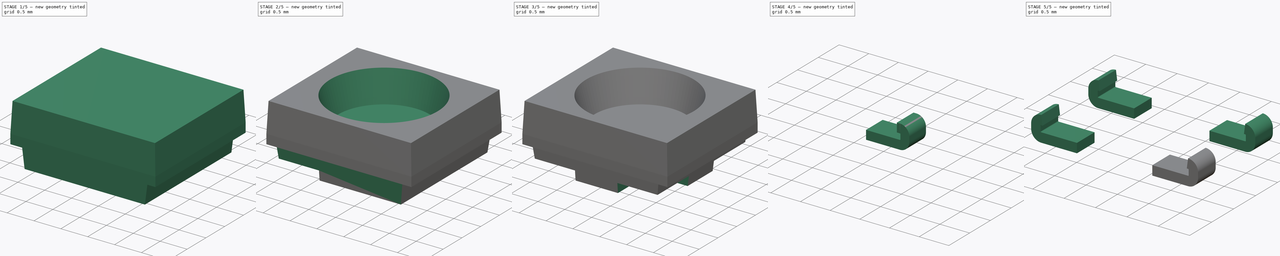
[diagram: build sequence overview — one tinted view per stage of 5, left to right]
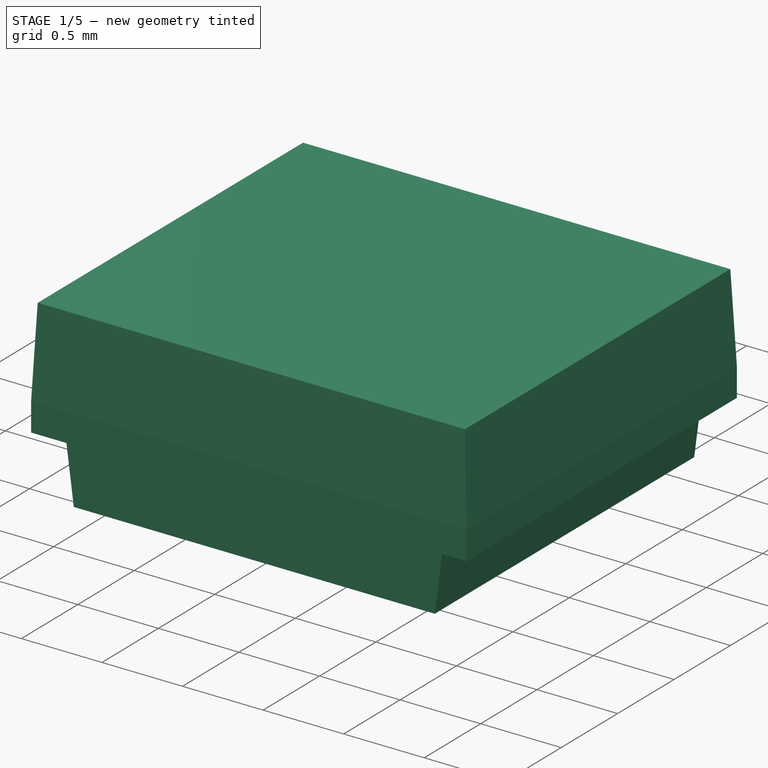
[diagram: stage 1 of 5 — iso view after this stage's code; geometry added in this stage tinted green]
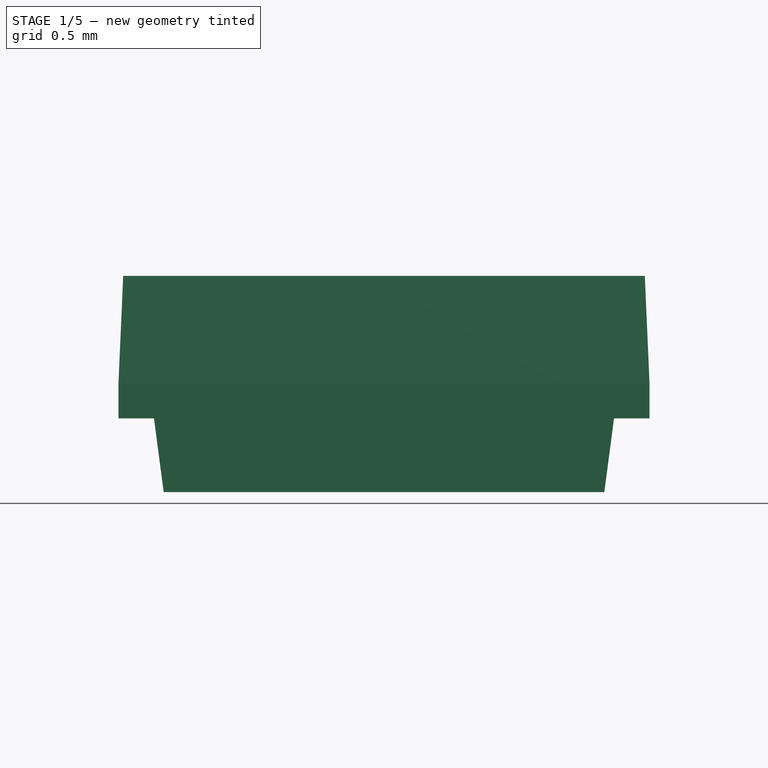
[diagram: stage 1 of 5 — front view after this stage's code; geometry added in this stage tinted green]
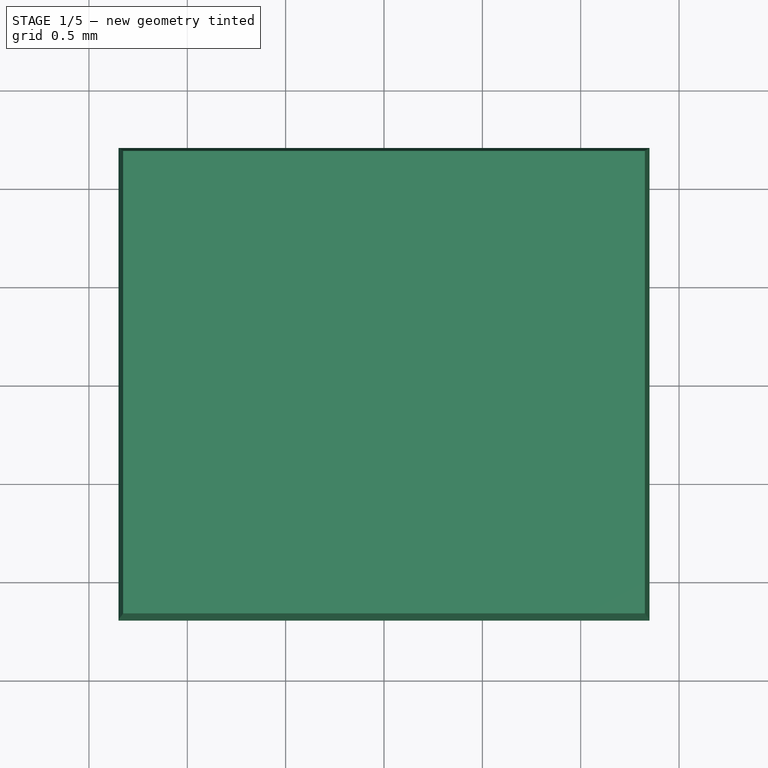
[diagram: stage 1 of 5 — top view after this stage's code; geometry added in this stage tinted green]
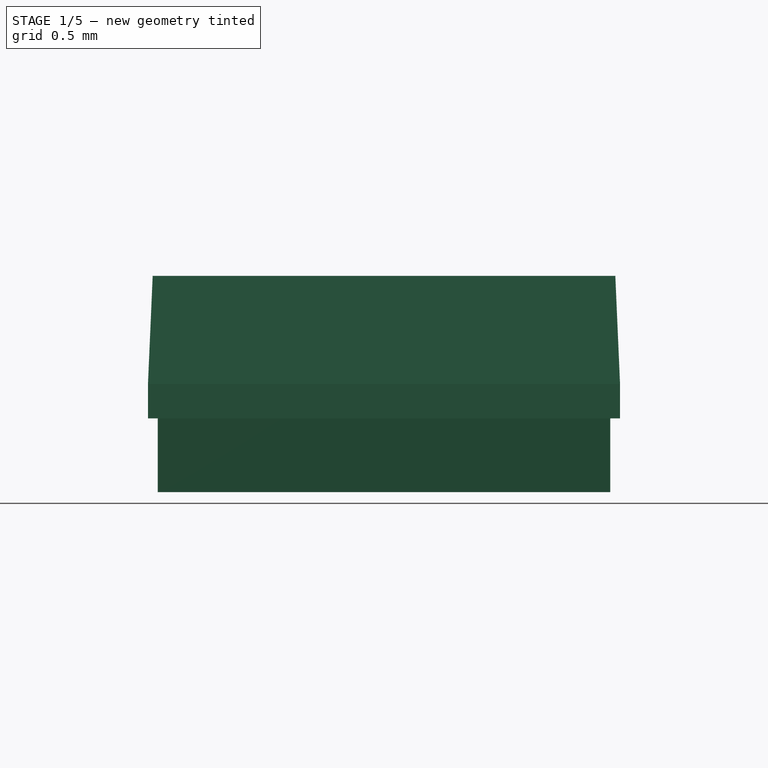
[diagram: stage 1 of 5 — right view after this stage's code; geometry added in this stage tinted green]
FCSTD DOCUMENT  (FreeCAD 1.0R39319 (Git))
Label: WS2812C-2427
License: All rights reserved
LicenseURL: https://en.wikipedia.org/wiki/All_rights_reserved
objects: Sketcher::SketchObject×8, PartDesign::Pocket×5, PartDesign::Pad×4, PartDesign::Draft×4, Image::ImagePlane×3, PartDesign::Mirrored×2, PartDesign::Body×2, PartDesign::FeaturePython×2, App::Part×2, PartDesign::MultiTransform×1, PartDesign::SubShapeBinder×1, App::DocumentObjectGroup×1, Part::FeaturePython×1, Part::Mirroring×1, Part::MultiFuse×1
note: 71 computed .brp shape members not serialized (recipe doc carries the construction recipe); baked Part::Feature solids carry a one-line shape summary decoded from their .brp

FEATURE [Sketcher::SketchObject] Sketch
  ArcFitTolerance = 1e-06
  AttachmentOffset = pos=(0,0,0.55) rot=(0,0,1;0rad)
  AttachmentSupport = -> [XY_Plane001]
  FullyConstrained = true
  MakeInternals = false
  MapMode = 5
  Placement = pos=(0,0,0.55) rot=(0,0,1;0rad)
  sketch-geometry (5):
    g0: LineSegment StartX=-1.35 StartY=-1.2 StartZ=0 EndX=1.35 EndY=-1.2 EndZ=0
    g1: LineSegment StartX=1.35 StartY=-1.2 StartZ=0 EndX=1.35 EndY=1.2 EndZ=0
    g2: LineSegment StartX=1.35 StartY=1.2 StartZ=0 EndX=-1.35 EndY=1.2 EndZ=0
    g3: LineSegment StartX=-1.35 StartY=1.2 StartZ=0 EndX=-1.35 EndY=-1.2 EndZ=0
    g4: GeomPoint [constr] X=0 Y=0 Z=0
  constraints (12):
    c: Coincident(g0,g1)
    c: Coincident(g1,g2)
    c: Coincident(g2,g3)
    c: Coincident(g3,g0)
    c: Horizontal(g0)
    c: Horizontal(g2)
    c: Vertical(g1)
    c: Vertical(g3)
    c: Symmetric(g2,g0,g4)
    c: Distance(g1,g3) = 2.7
    c: Distance(g0,g2) = 2.4
    c: Coincident(g4,g-1)
FEATURE [PartDesign::Pad] Pad  label="Pad-Top"
  Direction = (0,0,1)
  Length = 0.55
  Length2 = 10
  Profile = -> Sketch
  ReferenceAxis = -> Sketch [N_Axis]
  Refine = true
  Suppressed = false
  TaperAngle = -2.5
  Type = 0
FEATURE [PartDesign::Pad] Pad001  label="Pad-Middle"
  BaseFeature = -> Pad
  Direction = (0,0,-1)
  Length = 0.175
  Length2 = 10
  Profile = -> Pad [Face5]
  Refine = true
  Suppressed = false
  Type = 0
FEATURE [Sketcher::SketchObject] Sketch001
  ArcFitTolerance = 1e-06
  AttachmentSupport = -> [Pad001]
  ExternalGeometry = -> [Pad001]
  FullyConstrained = true
  MakeInternals = false
  MapMode = 5
  Placement = pos=(0,0,0.375) rot=(1,0,0;3.14159rad)
  sketch-geometry (5):
    g0: LineSegment StartX=-1.12 StartY=-1.15 StartZ=0 EndX=1.12 EndY=-1.15 EndZ=0
    g1: LineSegment StartX=1.12 StartY=-1.15 StartZ=0 EndX=1.12 EndY=1.15 EndZ=0
    g2: LineSegment StartX=1.12 StartY=1.15 StartZ=0 EndX=-1.12 EndY=1.15 EndZ=0
    g3: LineSegment StartX=-1.12 StartY=1.15 StartZ=0 EndX=-1.12 EndY=-1.15 EndZ=0
    g4: GeomPoint [constr] X=0 Y=0 Z=0
  constraints (12):
    c: Coincident(g0,g1)
    c: Coincident(g1,g2)
    c: Coincident(g2,g3)
    c: Coincident(g3,g0)
    c: Horizontal(g0)
    c: Horizontal(g2)
    c: Vertical(g1)
    c: Vertical(g3)
    c: Symmetric(g2,g0,g4)
    c: Coincident(g4,g-1)
    c: DistanceX(g1,g-3) = 0.23
    c: DistanceY(g1,g-3) = 0.05
FEATURE [Image::ImagePlane] _026_03_03_113828_hyprshot  label="Bottom"
  Placement = pos=(-0.315,0.225,0) rot=(1,0,0;3.14159rad)
  XSize = 5.53369
  YSize = 4.5861
FEATURE [PartDesign::Pad] Pad002  label="Pad-Bottom"
  BaseFeature = -> Pad001
  Direction = (0,0,-1)
  Length = 0.375
  Length2 = 10
  Profile = -> Sketch001
  ReferenceAxis = -> Sketch001 [N_Axis]
  Refine = true
  Suppressed = false
  Type = 0
FEATURE [PartDesign::Draft] Draft  label="Draft-Bottom"
  Angle = 7.5
  Base = -> Pad002 [Face12,Face14]
  BaseFeature = -> Pad002
  NeutralPlane = -> Pad002 [Face15]
  Refine = true
  Reversed = true
  SupportTransform = false
  Suppressed = false
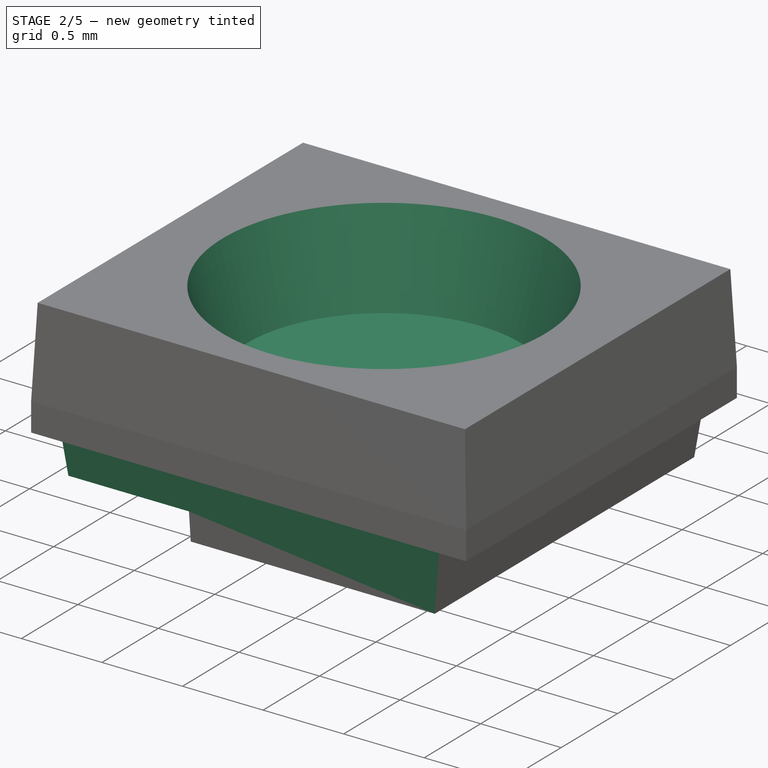
[diagram: stage 2 of 5 — iso view after this stage's code; geometry added in this stage tinted green]
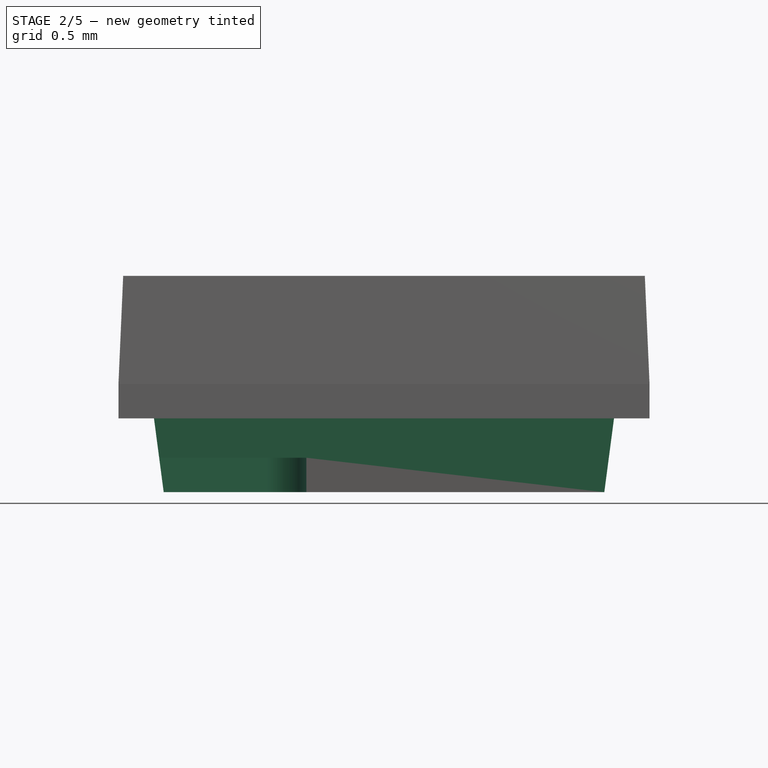
[diagram: stage 2 of 5 — front view after this stage's code; geometry added in this stage tinted green]
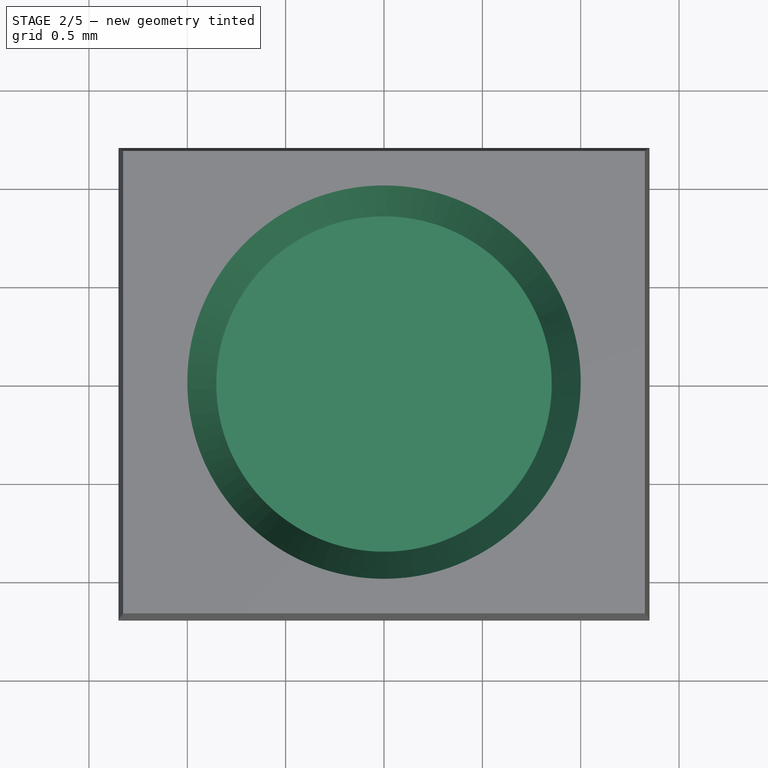
[diagram: stage 2 of 5 — top view after this stage's code; geometry added in this stage tinted green]
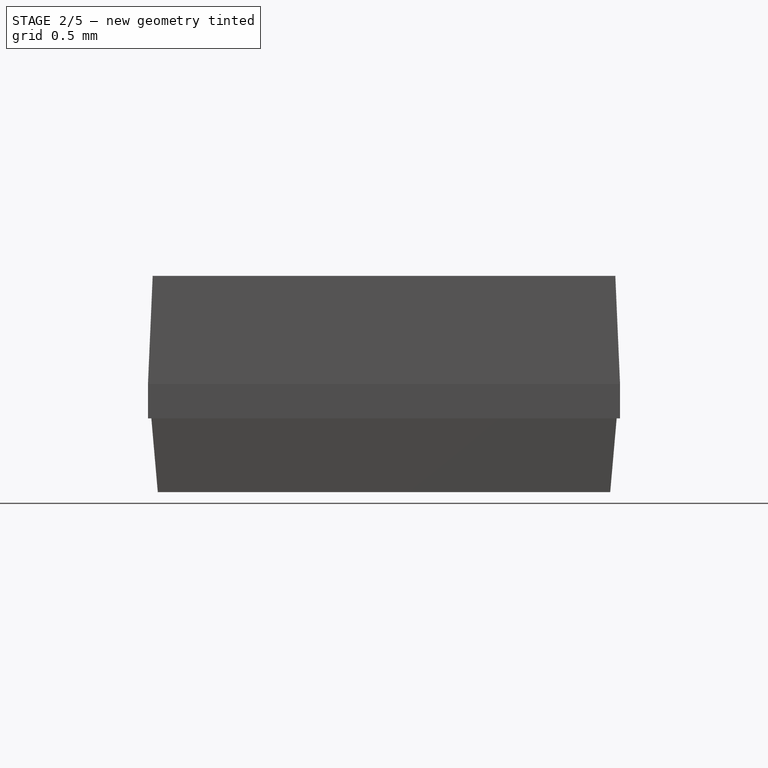
[diagram: stage 2 of 5 — right view after this stage's code; geometry added in this stage tinted green]
FEATURE [PartDesign::Draft] Draft001  label="Draft-Bottom001"
  Angle = 5
  Base = -> Draft [Face11,Face13]
  BaseFeature = -> Draft
  NeutralPlane = -> Draft [Face15]
  Refine = true
  Reversed = true
  SupportTransform = false
  Suppressed = false
FEATURE [Image::ImagePlane] _026_03_03_120234_hyprshot  label="Side"
  Placement = pos=(2,-0.055,0.285) rot=(0,1,0;1.5708rad)
  XSize = 4.11704
  YSize = 4.19491
FEATURE [Sketcher::SketchObject] Sketch002
  ArcFitTolerance = 1e-06
  AttachmentSupport = -> [Draft001]
  FullyConstrained = true
  MakeInternals = false
  MapMode = 5
  Placement = pos=(0,0,1.1) rot=(0,0,1;0rad)
  sketch-geometry (1):
    g0: Circle CenterX=0 CenterY=0 CenterZ=0 NormalX=0 NormalY=0 NormalZ=1 AngleXU=0 Radius=1
  constraints (2):
    c: Diameter(g0) = 2
    c: Coincident(g0,g-1)
FEATURE [PartDesign::Pocket] Pocket  label="Pocket-TopHole"
  BaseFeature = -> Draft001
  Direction = (0,0,-1)
  Length = 0.55
  Length2 = 5
  Profile = -> Sketch002
  ReferenceAxis = -> Sketch002 [N_Axis]
  Refine = true
  Suppressed = false
  Type = 0
FEATURE [PartDesign::Draft] Draft002  label="Draft-TopHole"
  Angle = 15
  Base = -> Pocket [Face10]
  BaseFeature = -> Pocket
  NeutralPlane = -> Pocket [Face4]
  Refine = true
  Reversed = true
  SupportTransform = false
  Suppressed = false
FEATURE [Sketcher::SketchObject] Sketch003
  ArcFitTolerance = 1e-06
  AttachmentSupport = -> [Draft002]
  ExternalGeometry = -> [Draft002]
  FullyConstrained = true
  MakeInternals = false
  MapMode = 5
  Placement = pos=(0,0,0) rot=(1,0,0;3.14159rad)
  sketch-geometry (6):
    g0: LineSegment StartX=-1.16937 StartY=1.18281 StartZ=0 EndX=-1.16937 EndY=0.332808 EndZ=0
    g1: LineSegment StartX=-1.16937 StartY=0.332808 StartZ=0 EndX=-0.59437 EndY=0.332808 EndZ=0
    g2: LineSegment StartX=-0.39437 StartY=0.532808 StartZ=0 EndX=-0.39437 EndY=1.18281 EndZ=0
    g3: LineSegment StartX=-0.39437 StartY=1.18281 StartZ=0 EndX=-1.16937 EndY=1.18281 EndZ=0
    g4: ArcOfCircle CenterX=-0.59437 CenterY=0.532808 CenterZ=0 NormalX=0 NormalY=0 NormalZ=1 AngleXU=0 Radius=0.2 StartAngle=4.71239 EndAngle=6.28319
    g5: GeomPoint [constr] X=-0.39437 Y=0.332808 Z=0
  constraints (15):
    c: Coincident(g0,g1)
    c: Coincident(g2,g3)
    c: Coincident(g3,g0)
    c: Vertical(g0)
    c: Vertical(g2)
    c: Horizontal(g1)
    c: Horizontal(g3)
    c: Coincident(g0,g-3)
    c: PointOnObject(g5,g1)
    c: PointOnObject(g5,g2)
    c: Tangent(g1,g4) = -1.5708
    c: Tangent(g2,g4) = -1.5708
    c: DistanceX(g3,g3) = 0.775
    c: DistanceY(g0,g0) = 0.85
    c: Radius(g4) = 0.2
FEATURE [PartDesign::Pocket] Pocket001  label="Pocket-BottomCorner"
  BaseFeature = -> Draft002
  Direction = (0,0,1)
  Length = 0.175
  Length2 = 5
  Profile = -> Sketch003
  ReferenceAxis = -> Sketch003 [N_Axis]
  Refine = true
  Suppressed = false
  Type = 0
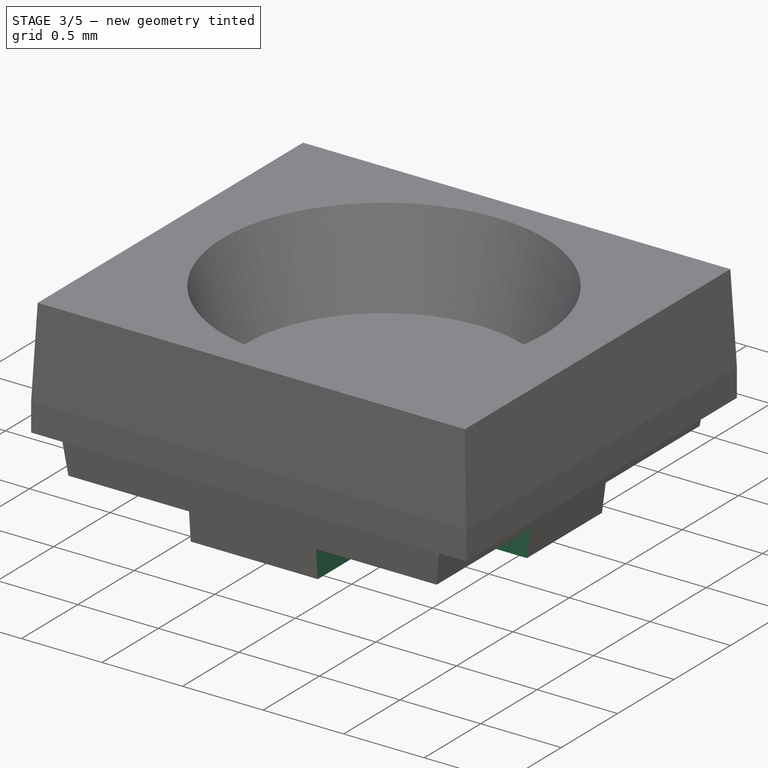
[diagram: stage 3 of 5 — iso view after this stage's code; geometry added in this stage tinted green]
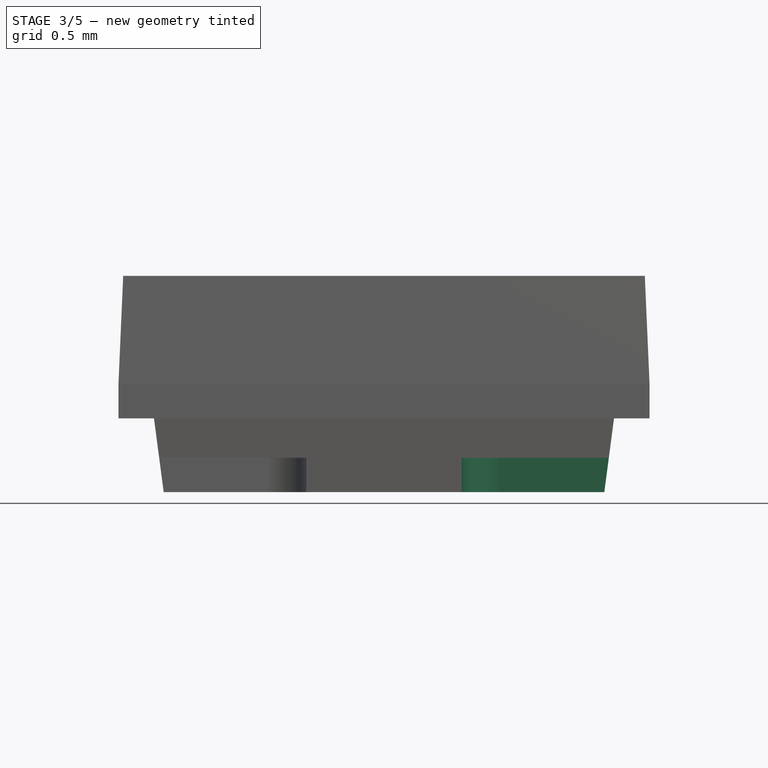
[diagram: stage 3 of 5 — front view after this stage's code; geometry added in this stage tinted green]
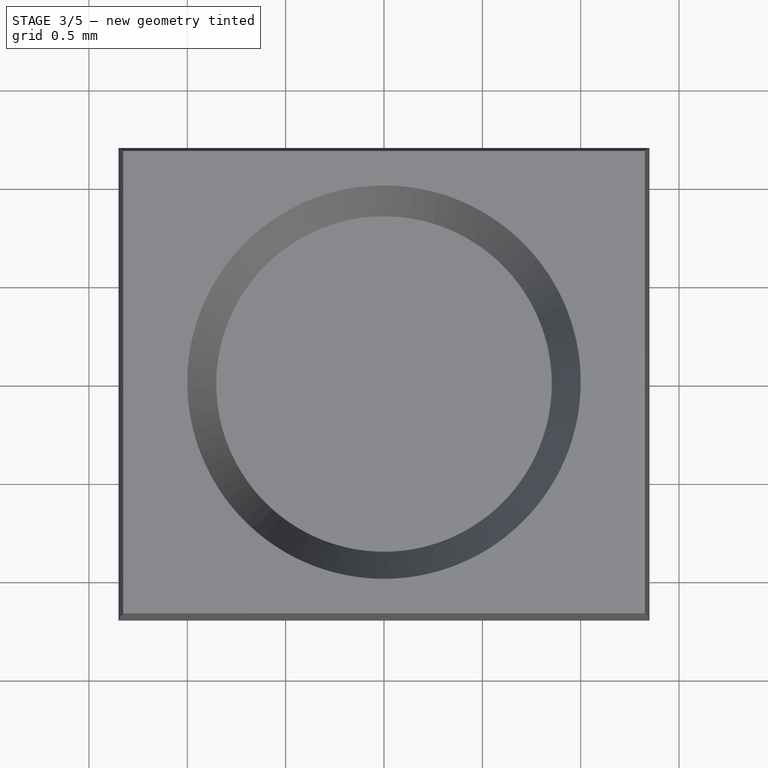
[diagram: stage 3 of 5 — top view after this stage's code; geometry added in this stage tinted green]
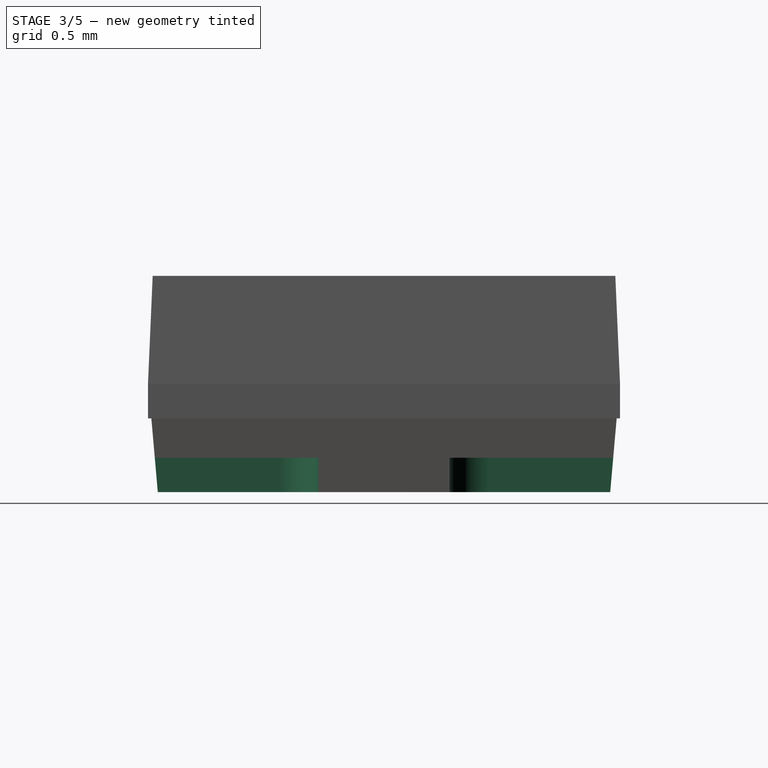
[diagram: stage 3 of 5 — right view after this stage's code; geometry added in this stage tinted green]
FEATURE [PartDesign::Mirrored] Mirrored
  MirrorPlane = -> YZ_Plane001
  Refine = true
  Suppressed = false
  TransformMode = 0
FEATURE [PartDesign::Mirrored] Mirrored001
  MirrorPlane = -> XZ_Plane001
  Refine = true
  Suppressed = false
  TransformMode = 0
FEATURE [PartDesign::MultiTransform] MultiTransform  label="MultiTransform-BottomCorners"
  BaseFeature = -> Pocket001
  Originals = -> [Pocket001]
  Refine = true
  Suppressed = false
  TransformMode = 0
  Transformations = -> [Mirrored,Mirrored001]
FEATURE [Sketcher::SketchObject] Sketch004
  ArcFitTolerance = 1e-06
  AttachmentSupport = -> [MultiTransform]
  FullyConstrained = true
  MakeInternals = false
  MapMode = 5
  Placement = pos=(0,0,0) rot=(1,0,0;3.14159rad)
  sketch-geometry (1):
    g0: Circle CenterX=0 CenterY=0 CenterZ=0 NormalX=0 NormalY=0 NormalZ=1 AngleXU=0 Radius=0.5
  constraints (2):
    c: Diameter(g0) = 1
    c: Coincident(g0,g-1)
FEATURE [PartDesign::Pocket] Pocket002  label="Pocket-BottomCenter"
  BaseFeature = -> MultiTransform
  Direction = (0,0,1)
  Length = 0.175
  Length2 = 5
  Profile = -> Sketch004
  ReferenceAxis = -> Sketch004 [N_Axis]
  Refine = true
  Suppressed = false
  Type = 0
FEATURE [PartDesign::Draft] Draft003  label="Draft-BottomCenter"
  Angle = 60
  Base = -> Pocket002 [Face34]
  BaseFeature = -> Pocket002
  NeutralPlane = -> Pocket002 [Face19]
  Refine = true
  Reversed = true
  SupportTransform = false
  Suppressed = false
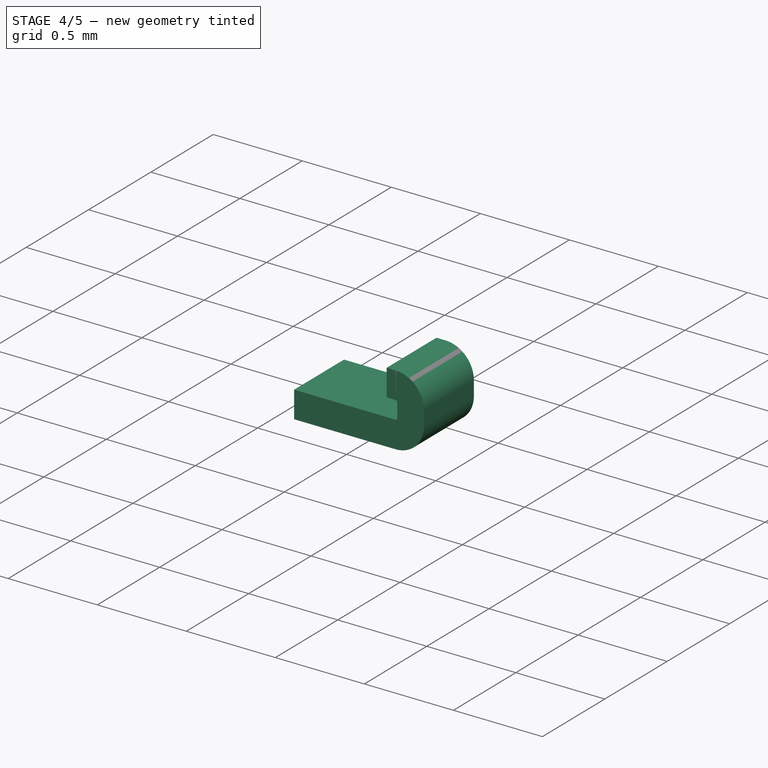
[diagram: stage 4 of 5 — iso view after this stage's code; geometry added in this stage tinted green]
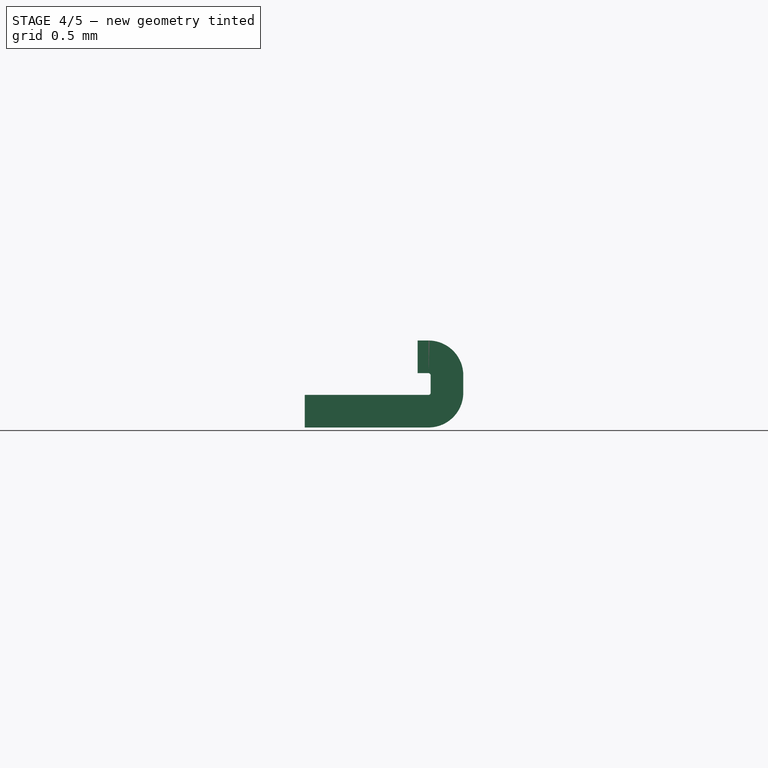
[diagram: stage 4 of 5 — front view after this stage's code; geometry added in this stage tinted green]
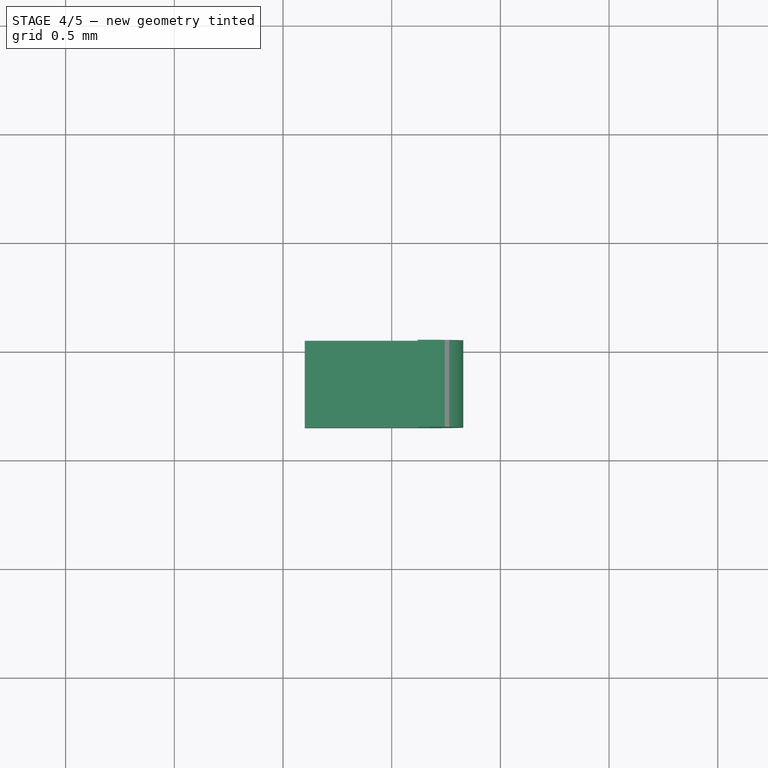
[diagram: stage 4 of 5 — top view after this stage's code; geometry added in this stage tinted green]
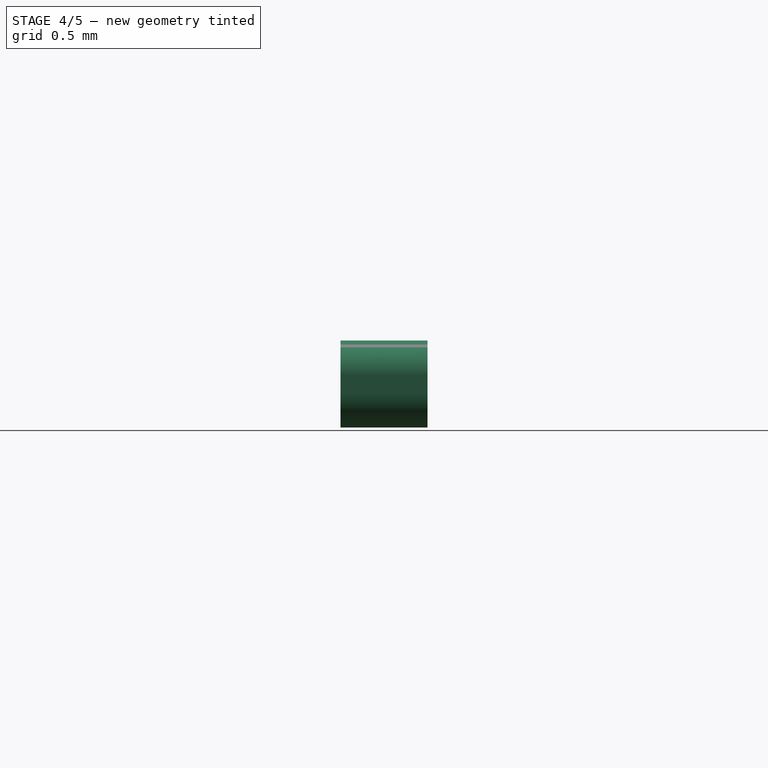
[diagram: stage 4 of 5 — right view after this stage's code; geometry added in this stage tinted green]
FEATURE [Sketcher::SketchObject] Sketch005
  ArcFitTolerance = 1e-06
  AttachmentSupport = -> [Draft003]
  ExternalGeometry = -> [Draft003]
  FullyConstrained = true
  MakeInternals = false
  MapMode = 5
  Placement = pos=(0,0,1.1) rot=(0,0,1;0rad)
  sketch-geometry (3):
    g0: LineSegment StartX=1.35 StartY=1.2 StartZ=0 EndX=0.85 EndY=1.2 EndZ=0
    g1: LineSegment StartX=0.85 StartY=1.2 StartZ=0 EndX=1.35 EndY=0.7 EndZ=0
    g2: LineSegment StartX=1.35 StartY=0.7 StartZ=0 EndX=1.35 EndY=1.2 EndZ=0
  constraints (8):
    c: Coincident(g0,g-3)
    c: Horizontal(g0)
    c: Coincident(g0,g1)
    c: Coincident(g1,g2)
    c: Coincident(g2,g0)
    c: Vertical(g2)
    c: Equal(g0,g2)
    c: DistanceX(g0,g0) = 0.5
FEATURE [Image::ImagePlane] _026_03_03_122908_hyprshot  label="Top"
  Placement = pos=(-0.2,0.375,2) rot=(0,0,1;0rad)
  XSize = 4.14969
  YSize = 3.93
FEATURE [PartDesign::Pocket] Pocket003  label="Pocket-CornerChamfer"
  BaseFeature = -> Draft003
  Direction = (0,0,-1)
  Length = 0.2
  Length2 = 5
  Profile = -> Sketch005
  ReferenceAxis = -> Sketch005 [N_Axis]
  Refine = true
  Suppressed = false
  Type = 0
FEATURE [PartDesign::Body] Body
  AllowCompound = false
  Group = -> [Sketch,Pad,Pad001,Sketch001,Pad002,Draft,Draft001,Sketch002,Pocket,Draft002,Sketch003,Pocket001,MultiTransform,Mirrored,Mirrored001,Sketch004,Pocket002,Draft003,Sketch005,Pocket003]
  Origin = -> Origin001
  Placement = pos=(0,0,0.025) rot=(0,0,1;0rad)
  Tip = -> Pocket003
FEATURE [PartDesign::SubShapeBinder] Binder
  BindCopyOnChange = 0
  BindMode = 0
  ClaimChildren = false
  Context = -> Part [Part001.Body001.Binder.]
  Fuse = false
  MakeFace = true
  OffsetFill = false
  OffsetIntersection = false
  OffsetJoinType = 0
  OffsetOpenResult = false
  PartialLoad = false
  Refine = true
  Relative = true
  Support = -> [Body]
  _Version = 2
FEATURE [App::DocumentObjectGroup] Group  label="References"
  Group = -> [_026_03_03_113828_hyprshot,_026_03_03_120234_hyprshot,_026_03_03_122908_hyprshot]
FEATURE [Sketcher::SketchObject] Sketch006
  ArcFitTolerance = 1e-06
  AttachmentSupport = -> [XY_Plane003]
  ExternalGeometry = -> [Binder]
  FullyConstrained = true
  MakeInternals = false
  MapMode = 5
  sketch-geometry (5):
    g0: LineSegment StartX=0.6 StartY=-0.45 StartZ=0 EndX=0.6 EndY=-0.85 EndZ=0
    g1: LineSegment StartX=0.6 StartY=-0.85 StartZ=0 EndX=1.16937 EndY=-0.85 EndZ=0
    g2: LineSegment StartX=1.16937 StartY=-0.85 StartZ=0 EndX=1.16937 EndY=-0.45 EndZ=0
    g3: LineSegment StartX=1.16937 StartY=-0.45 StartZ=0 EndX=0.6 EndY=-0.45 EndZ=0
    g4: GeomPoint X=0.6 Y=-0.65 Z=0
  constraints (13):
    c: Coincident(g0,g1)
    c: Coincident(g1,g2)
    c: Coincident(g2,g3)
    c: Coincident(g3,g0)
    c: Vertical(g0)
    c: Vertical(g2)
    c: Horizontal(g1)
    c: Horizontal(g3)
    c: Symmetric(g0,g0,g4)
    c: Distance(g4,g-2) = 0.6
    c: Distance(g4,g-1) = 0.65
    c: Distance(g0,g0) = 0.4
    c: Vertical(g1,g-3)
FEATURE [PartDesign::Pad] Pad003
  Direction = (0,0,1)
  Length = 0.15
  Length2 = 10
  Profile = -> Sketch006
  ReferenceAxis = -> Sketch006 [N_Axis]
  Refine = true
  Suppressed = false
  Type = 0
FEATURE [PartDesign::FeaturePython] Bend  # WARN: FeaturePython — macro-defined, semantics opaque (R4)
  AutoMiter = true
  BaseFeature = -> Pad003
  BendType = 0
  LengthList = [0.24]
  LengthSpec = 0
  NonperforationMaxLength = 5
  OffsetType = 1
  OffsetTypeOffset = 0
  Perforate = false
  PerforationAngle = 0
  PerforationInitialLength = 5
  PerforationMaxLength = 5
  RelativeAngleToRef = 0
  ReliefFactor = 0.7
  SupplAngleRef = false
  Suppressed = false
  UseReliefFactor = false
  angle = 90
  baseObject = -> Pad003 [Edge10]
  bendAList = [90]
  extend1 = 0
  extend2 = 0
  gap1 = 0
  gap2 = 0
  invert = false
  kfactor = 0.5
  length = 0.24
  maxExtendDist = 5
  minGap = 0.2
  minReliefGap = 1
  miterangle1 = 0
  miterangle2 = 0
  offset = 0
  radius = 0.01
  reliefType = 0
  reliefd = 1
  reliefw = 0.8
  sketchflip = false
  sketchinvert = false
  unfold = false
FEATURE [PartDesign::FeaturePython] Bend001  # WARN: FeaturePython — macro-defined, semantics opaque (R4)
  AutoMiter = true
  BaseFeature = -> Bend
  BendType = 1
  LengthList = [0.05]
  LengthSpec = 0
  NonperforationMaxLength = 5
  OffsetType = 1
  OffsetTypeOffset = 0
  Perforate = false
  PerforationAngle = 0
  PerforationInitialLength = 5
  PerforationMaxLength = 5
  RelativeAngleToRef = 0
  ReliefFactor = 0.7
  SupplAngleRef = false
  Suppressed = false
  UseReliefFactor = false
  angle = 90
  baseObject = -> Bend [Edge28]
  bendAList = [90]
  extend1 = 0
  extend2 = 0
  gap1 = 0
  gap2 = 0
  invert = false
  kfactor = 0.5
  length = 0.05
  maxExtendDist = 5
  minGap = 0.2
  minReliefGap = 1
  miterangle1 = 0
  miterangle2 = 0
  offset = 0
  radius = 0.01
  reliefType = 0
  reliefd = 1
  reliefw = 0.8
  sketchflip = false
  sketchinvert = false
  unfold = false
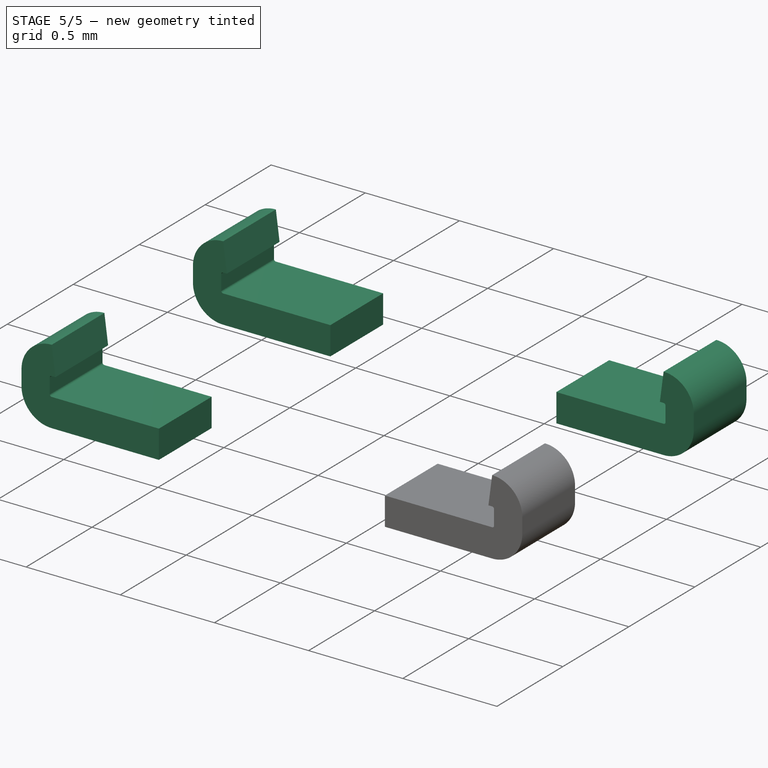
[diagram: stage 5 of 5 — iso view after this stage's code; geometry added in this stage tinted green]
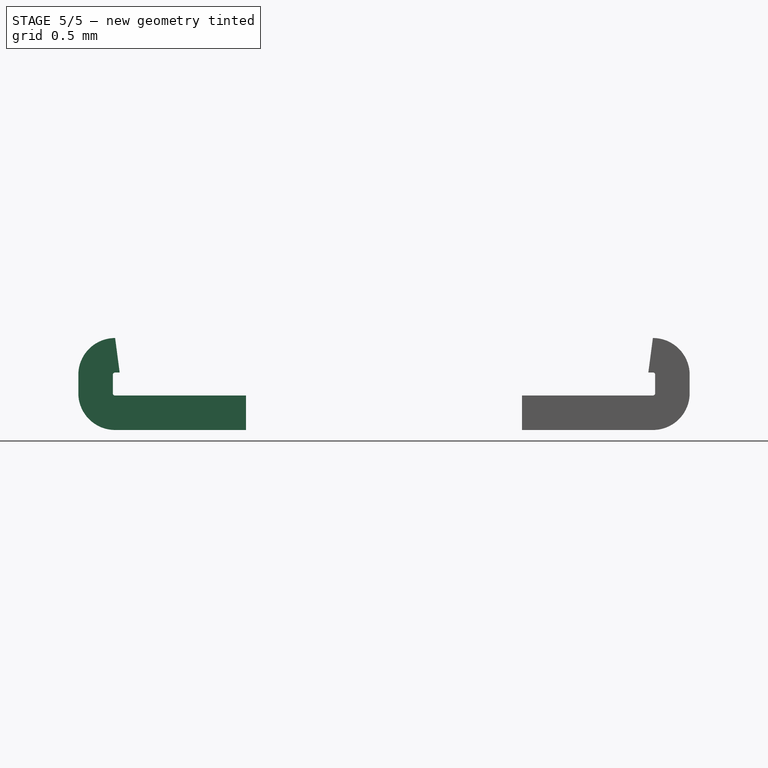
[diagram: stage 5 of 5 — front view after this stage's code; geometry added in this stage tinted green]
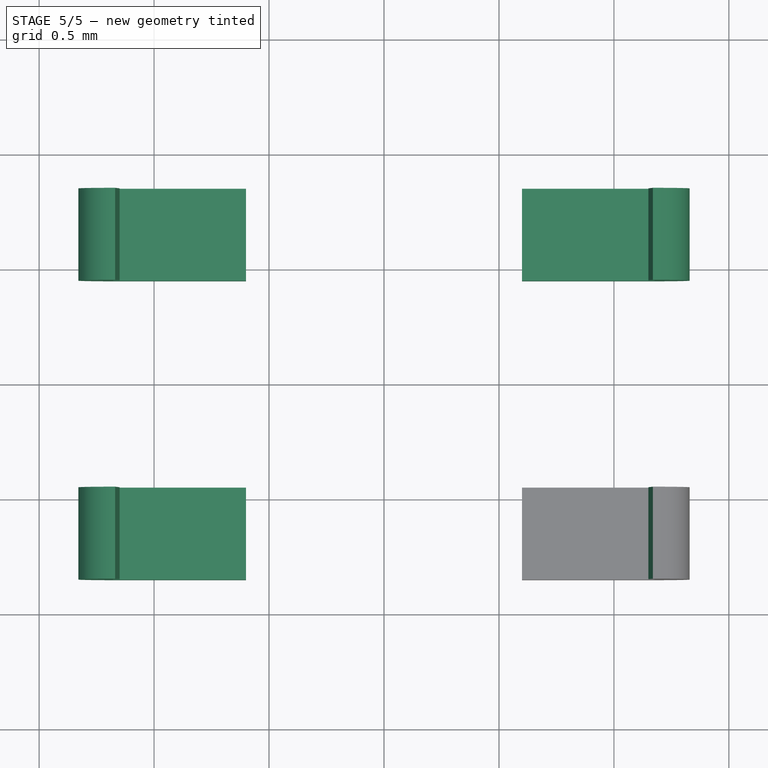
[diagram: stage 5 of 5 — top view after this stage's code; geometry added in this stage tinted green]
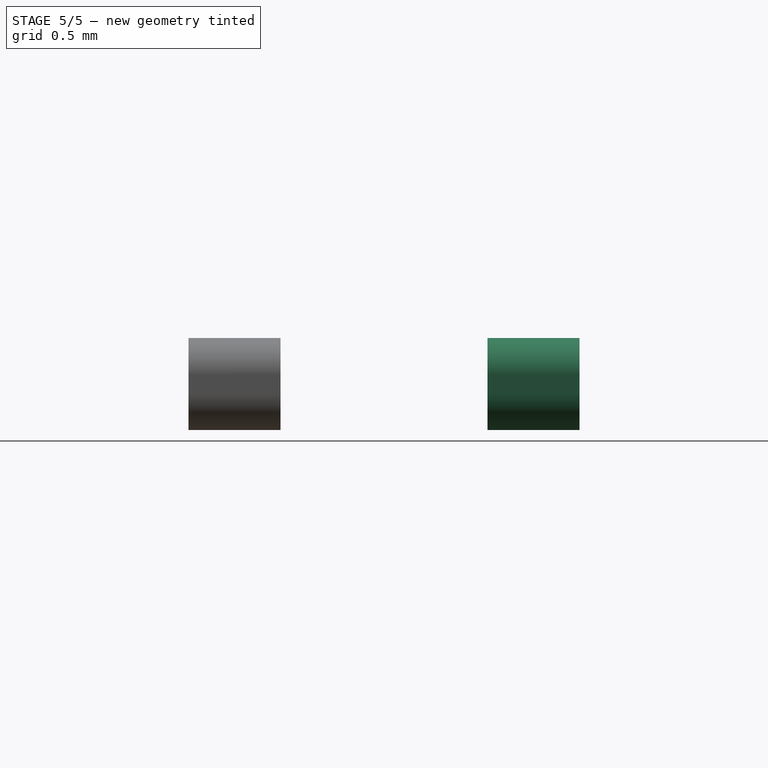
[diagram: stage 5 of 5 — right view after this stage's code; geometry added in this stage tinted green]
FEATURE [Sketcher::SketchObject] Sketch007
  ArcFitTolerance = 1e-06
  AttachmentSupport = -> [Bend001]
  ExternalGeometry = -> [Binder]
  FullyConstrained = true
  MakeInternals = false
  MapMode = 5
  Placement = pos=(0,-0.85,0) rot=(1,0,0;1.5708rad)
  sketch-geometry (4):
    g0: LineSegment StartX=1.16937 StartY=0.4 StartZ=0 EndX=1.06937 EndY=0.4 EndZ=0
    g1: LineSegment StartX=1.06937 StartY=0.4 StartZ=0 EndX=1.06937 EndY=0.2 EndZ=0
    g2: LineSegment StartX=1.06937 StartY=0.2 StartZ=0 EndX=1.14304 EndY=0.2 EndZ=0
    g3: LineSegment StartX=1.14304 StartY=0.2 StartZ=0 EndX=1.16937 EndY=0.4 EndZ=0
  constraints (10):
    c: Coincident(g0,g-3)
    c: Horizontal(g0)
    c: Coincident(g1,g0)
    c: Vertical(g1)
    c: Coincident(g2,g1)
    c: Coincident(g2,g-3)
    c: Horizontal(g2)
    c: Coincident(g3,g2)
    c: Coincident(g3,g0)
    c: DistanceX(g0,g0) = 0.1
FEATURE [PartDesign::Pocket] Pocket004
  BaseFeature = -> Bend001
  Direction = (0,1,-2e-16)
  Length = 5
  Length2 = 5
  Profile = -> Sketch007
  ReferenceAxis = -> Sketch007 [N_Axis]
  Refine = true
  Suppressed = false
  Type = 1
FEATURE [PartDesign::Body] Body001  label="Pin"
  AllowCompound = false
  Group = -> [Binder,Sketch006,Pad003,Bend,Bend001,Sketch007,Pocket004]
  Origin = -> Origin003
  Tip = -> Pocket004
FEATURE [Part::FeaturePython] Array  # Draft array (typed FeaturePython)
  AlwaysSyncPlacement = false
  Angle = 360
  ArrayType = 0
  Axis = (0,0,1)
  Base = -> Body001
  Center = (0,0,0)
  Count = 2
  ExpandArray = false
  Fuse = true
  IntervalAxis = (0,0,0)
  IntervalX = (100,0,0)
  IntervalY = (0,1.3,0)
  IntervalZ = (0,0,100)
  NumberCircles = 3
  NumberPolar = 5
  NumberX = 1
  NumberY = 2
  NumberZ = 1
  PlacementList = 2 placements: [(0,0,0),(0,1.3,0)]
  RadialDistance = 50
  ScaleList = (2) [(1,1,1),(1,1,1)]
  Symmetry = 1
  TangentialDistance = 25
FEATURE [Part::Mirroring] Mirror  label="Array (mirrored)"
  Base = (0,0,0)
  Normal = (-1,0,0)
  Source = -> Array
FEATURE [Part::MultiFuse] Fusion  label="Pins001"
  Refine = true
  Shapes = -> [Mirror,Array]
FEATURE [App::Part] Part001  label="Pins"
  Group = -> [Body001,Mirror,Array,Fusion]
  Origin = -> Origin002
FEATURE [App::Part] Part  label="WS2812C-2427"
  Group = -> [Body,Part001]
  Origin = -> Origin
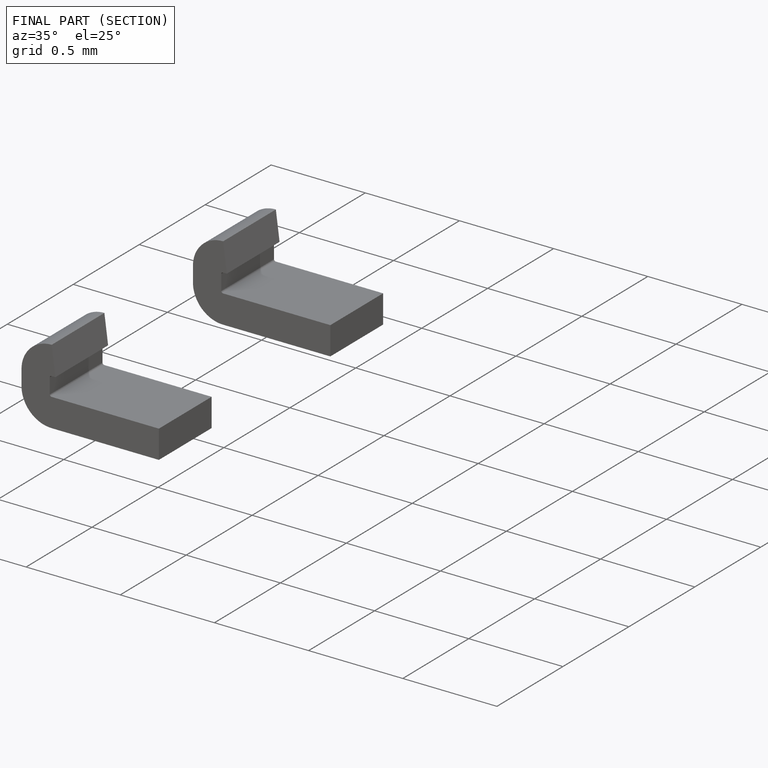
[diagram: finished part — half-section view (interior)]
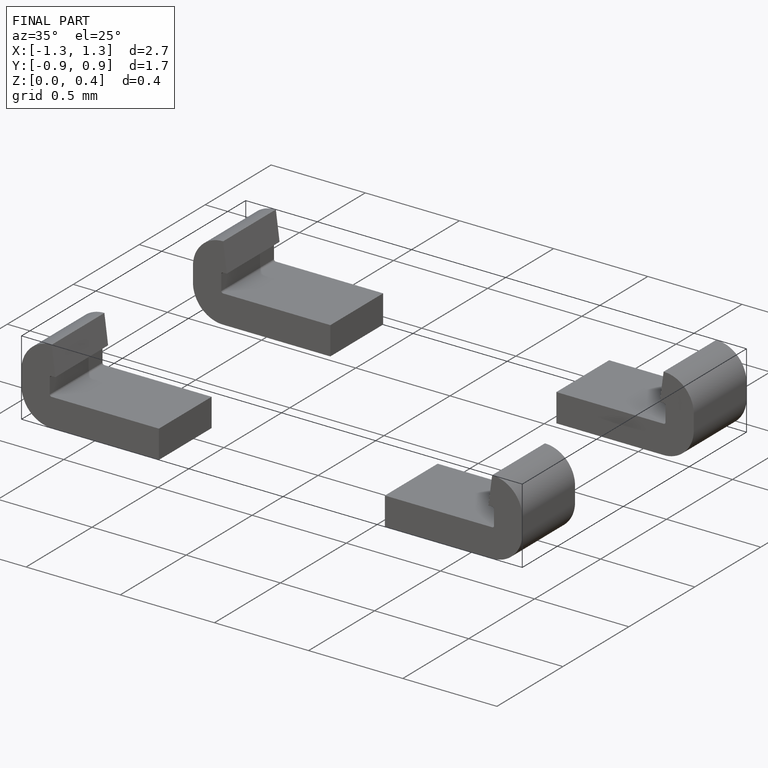
[diagram: finished part — iso view with bounding-box wireframe]
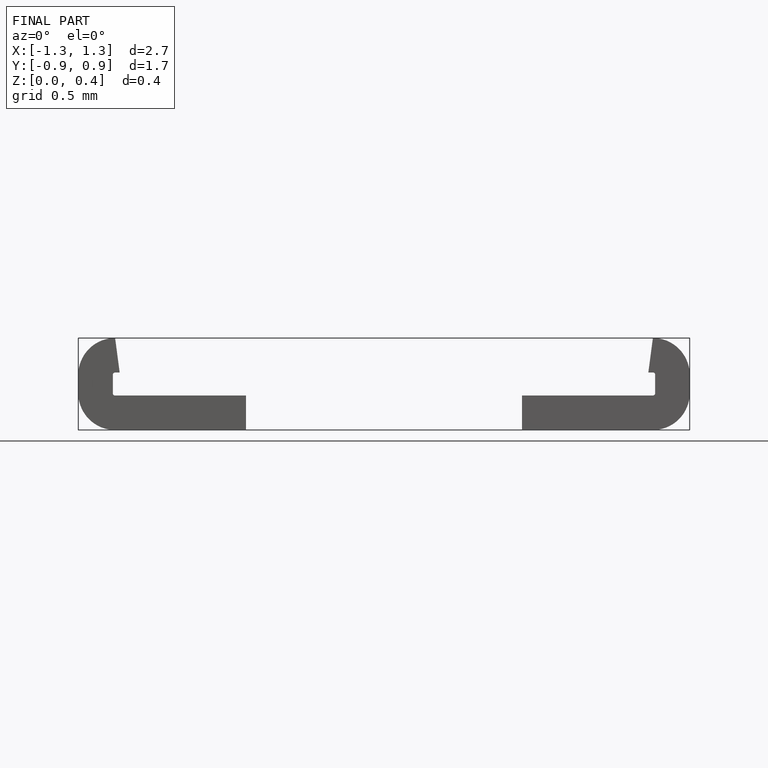
[diagram: finished part — front view with bounding-box wireframe]
